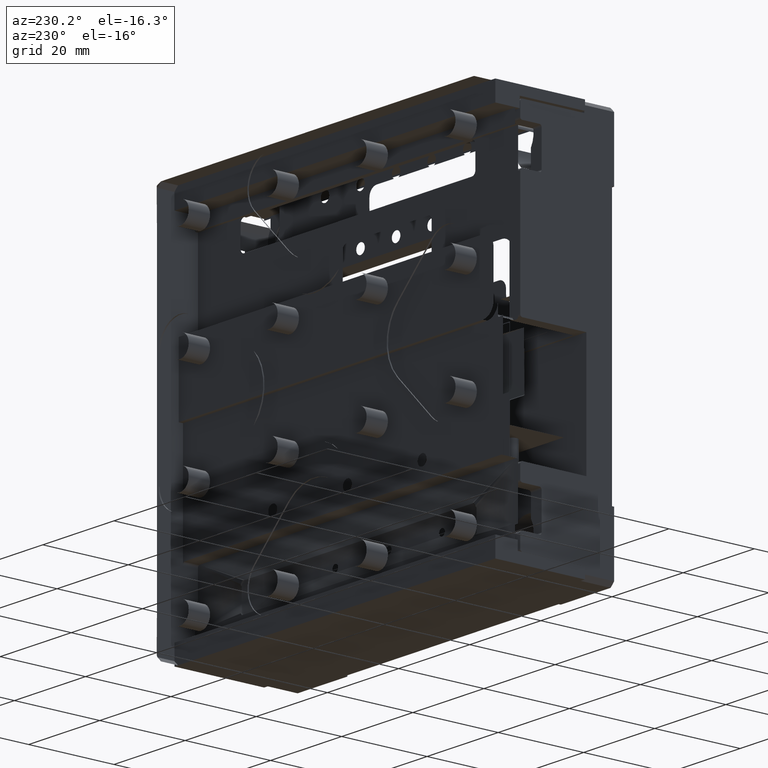
[diagram: clean part render]
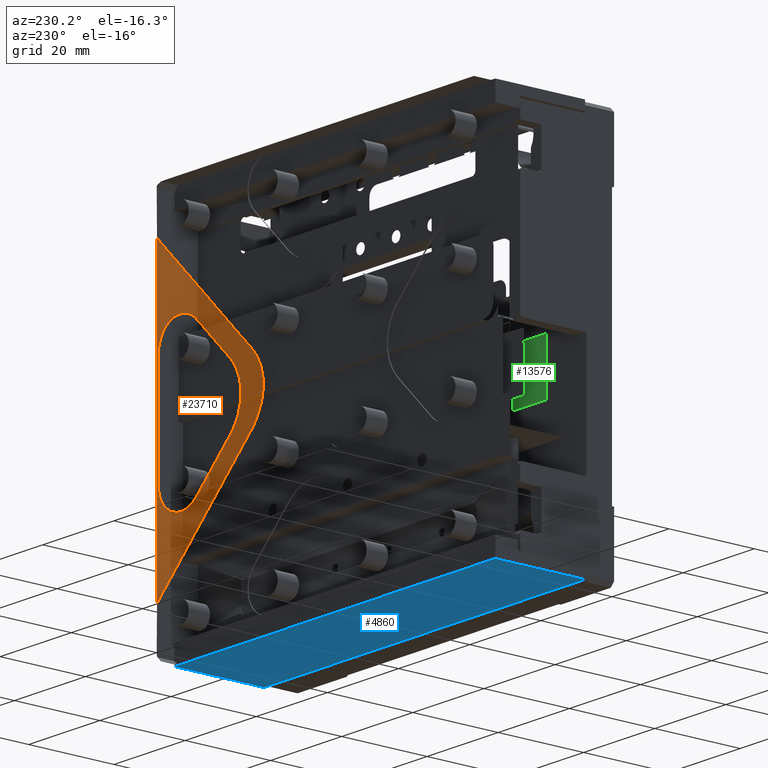
[diagram: same view with three faces highlighted in distinct colors, each labeled with its STEP entity id]
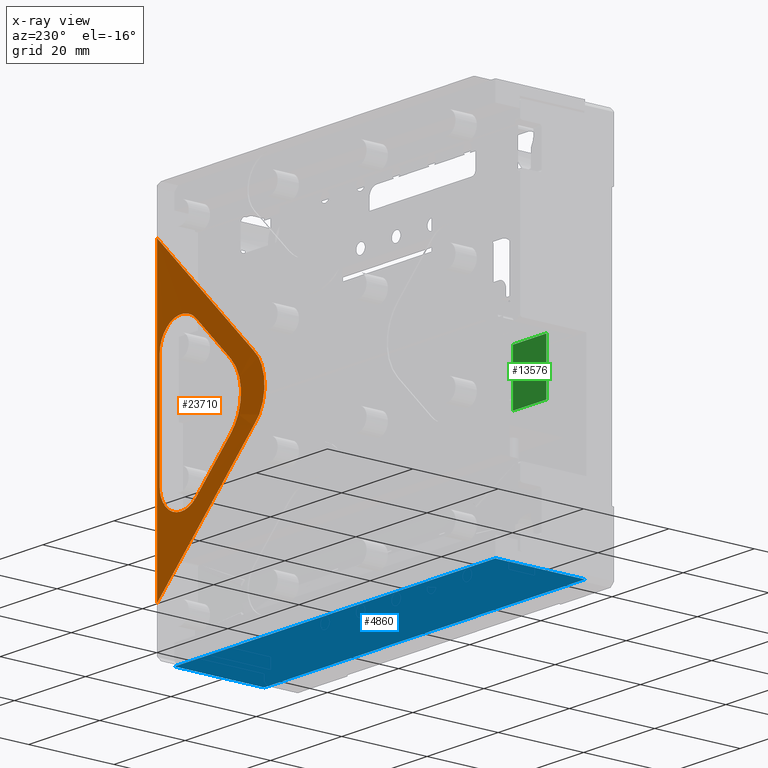
[diagram: x-ray of the same camera — body ghosted, the three highlighted faces saturated]
A machine part, auxiliary view with three faces highlighted in distinct colors.
The next image is the same camera in x-ray (body ghosted, the three faces saturated) — at least one of them is partly hidden behind the body in this view.
Their STEP definitions:

[orange] entity #23710 — the highlighted planar face has unit normal (-0, 1, -0).
#106 = CARTESIAN_POINT ( 'NONE',  ( 61.97056274847719948, 32.19999999999990337, 37.92893218813443923 ) ) ;
#127 = VERTEX_POINT ( 'NONE', #28809 ) ;
#317 = CARTESIAN_POINT ( 'NONE',  ( 88.07065022510973051, 32.19999999999989626, 59.80539245015050653 ) ) ;
#342 = CARTESIAN_POINT ( 'NONE',  ( 81.71460183660258281, 32.19999999999990337, 26.49999999999996803 ) ) ;
#400 = CARTESIAN_POINT ( 'NONE',  ( 61.04496213636083013, 32.19999999999990337, 51.14546719974912747 ) ) ;
#430 = LINE ( 'NONE', #18168, #4114 ) ;
#475 = CARTESIAN_POINT ( 'NONE',  ( 80.19111408500432958, 32.19999999999990337, 63.06920318459111030 ) ) ;
#494 = CARTESIAN_POINT ( 'NONE',  ( 80.92951269384437296, 32.19999999999989626, 26.65616393999006561 ) ) ;
#585 = CARTESIAN_POINT ( 'NONE',  ( 68.58578643762699301, 32.19999999999990337, 37.92893218813444633 ) ) ;
#659 = VECTOR ( 'NONE', #14472, 1000.000000000000000 ) ;
#789 = CARTESIAN_POINT ( 'NONE',  ( 89.11688164886778907, 32.32207890075471823, 10.78261328774380168 ) ) ;
#1031 = LINE ( 'NONE', #19209, #3918 ) ;
#1060 = CARTESIAN_POINT ( 'NONE',  ( 88.50000000000005684, 32.19999999999990337, 32.49999999999997158 ) ) ;
#1465 = ORIENTED_EDGE ( 'NONE', *, *, #28975, .F. ) ;
#1600 = DIRECTION ( 'NONE',  ( 0.7071067811865474617, 0.000000000000000000, -0.7071067811865476838 ) ) ;
#1954 = VERTEX_POINT ( 'NONE', #9960 ) ;
#2039 = VERTEX_POINT ( 'NONE', #24141 ) ;
#2149 = ORIENTED_EDGE ( 'NONE', *, *, #24685, .F. ) ;
#2195 = EDGE_CURVE ( 'NONE', #14547, #2435, #10040, .T. ) ;
#2435 = VERTEX_POINT ( 'NONE', #10930 ) ;
#2552 = CARTESIAN_POINT ( 'NONE',  ( 82.50000000000004263, 32.19999999999990337, 26.49999999999996092 ) ) ;
#2568 = CARTESIAN_POINT ( 'NONE',  ( 89.00000000000001421, 32.49999999999990052, 10.89949493661159607 ) ) ;
#2670 = CARTESIAN_POINT ( 'NONE',  ( 85.85101896221333106, 32.19999999999990337, 62.51175121036676785 ) ) ;
#2751 = CARTESIAN_POINT ( 'NONE',  ( 61.04496213636085855, 32.19999999999991047, 38.85453280025076594 ) ) ;
#3011 = LINE ( 'NONE', #3441, #659 ) ;
#3105 = CARTESIAN_POINT ( 'NONE',  ( 86.18728031984953475, 32.19999999999990337, 27.70199894561088527 ) ) ;
#3180 = EDGE_LOOP ( 'NONE', ( #26174, #22062, #1465, #9840, #8821, #19696, #2149 ) ) ;
#3369 = CARTESIAN_POINT ( 'NONE',  ( 65.65685424949245430, 32.19999999999990337, 46.30899693899571901 ) ) ;
#3441 = CARTESIAN_POINT ( 'NONE',  ( 88.50000000000005684, 32.19999999999990337, 44.99999999999997158 ) ) ;
#3665 = ORIENTED_EDGE ( 'NONE', *, *, #28983, .F. ) ;
#3918 = VECTOR ( 'NONE', #1600, 1000.000000000000000 ) ;
#4114 = VECTOR ( 'NONE', #27110, 1000.000000000000000 ) ;
#4789 = CARTESIAN_POINT ( 'NONE',  ( 59.30190379365946285, 32.19999999999989626, 42.38252115640711537 ) ) ;
#4864 = CARTESIAN_POINT ( 'NONE',  ( 83.67431503440454321, 32.19999999999990337, 63.41337149853591626 ) ) ;
#4887 = CARTESIAN_POINT ( 'NONE',  ( 89.00000000000002842, 32.49999999999990052, 79.10050506338828313 ) ) ;
#5151 = CARTESIAN_POINT ( 'NONE',  ( 67.66018582551065208, 32.19999999999990337, 38.85453280025077305 ) ) ;
#5434 = CARTESIAN_POINT ( 'NONE',  ( 65.91712748280927769, 32.19999999999989626, 47.61747884359276384 ) ) ;
#6040 = CARTESIAN_POINT ( 'NONE',  ( 83.28539816339750246, 32.19999999999991047, 26.49999999999996803 ) ) ;
#6050 = AXIS2_PLACEMENT_3D ( 'NONE', #20882, #16941, #14609 ) ;
#6771 = ORIENTED_EDGE ( 'NONE', *, *, #2195, .F. ) ;
#6858 = CARTESIAN_POINT ( 'NONE',  ( 60.30376667680005909, 32.19999999999990337, 50.03618980370896452 ) ) ;
#7066 = DIRECTION ( 'NONE',  ( -0.7071067811865467956, 0.000000000000000000, -0.7071067811865483499 ) ) ;
#7087 = CARTESIAN_POINT ( 'NONE',  ( 84.25189062816446040, 32.19999999999990337, 63.26869634377434437 ) ) ;
#7298 = EDGE_CURVE ( 'NONE', #7652, #12086, #21492, .T. ) ;
#7507 = CARTESIAN_POINT ( 'NONE',  ( 65.91712748280929191, 32.19999999999990337, 42.38252115640715800 ) ) ;
#7530 = CARTESIAN_POINT ( 'NONE',  ( 78.25735931288075165, 32.19999999999990337, 61.74264068711924835 ) ) ;
#7652 = VERTEX_POINT ( 'NONE', #25355 ) ;
#7671 = CARTESIAN_POINT ( 'NONE',  ( 88.50000000000005684, 32.19999999999990337, 31.71460183660252596 ) ) ;
#7936 = CARTESIAN_POINT ( 'NONE',  ( 68.58578643762699301, 32.19999999999990337, 52.07106781186548261 ) ) ;
#7962 = CARTESIAN_POINT ( 'NONE',  ( 84.07048730615574073, 32.19999999999991047, 26.65616393999007272 ) ) ;
#8003 = FACE_BOUND ( 'NONE', #3180, .T. ) ;
#8821 = ORIENTED_EDGE ( 'NONE', *, *, #24216, .F. ) ;
#8918 = CARTESIAN_POINT ( 'NONE',  ( 59.04163056034261814, 32.19999999999990337, 46.30899693899568348 ) ) ;
#8956 = VERTEX_POINT ( 'NONE', #789 ) ;
#9142 = CARTESIAN_POINT ( 'NONE',  ( 61.97056274847719948, 32.34999999999990195, 37.92893218813443212 ) ) ;
#9271 = CARTESIAN_POINT ( 'NONE',  ( 87.81607555430423417, 32.19999999999990337, 60.34364536830018722 ) ) ;
#9421 = CARTESIAN_POINT ( 'NONE',  ( 81.90718828634022941, 32.19999999999990337, 63.49962936787542844 ) ) ;
#9452 = CARTESIAN_POINT ( 'NONE',  ( 70.98037516565148053, 32.49999999999990052, 28.91911977096015463 ) ) ;
#9840 = ORIENTED_EDGE ( 'NONE', *, *, #11425, .F. ) ;
#9960 = CARTESIAN_POINT ( 'NONE',  ( 89.11688164886778907, 32.32207890075472534, 79.21738671225604378 ) ) ;
#10040 = B_SPLINE_CURVE_WITH_KNOTS ( 'NONE', 3,
 ( #106, #2751, #24869, #4789, #22671, #8918, #17710, #6858, #400, #20188 ),
 .UNSPECIFIED., .F., .F.,
 ( 4, 2, 2, 2, 4 ),
 ( 0.000000000000000000, 0.2500000000000000000, 0.5000000000000000000, 0.7500000000000000000, 1.000000000000000000 ),
 .UNSPECIFIED. ) ;
#10118 = CARTESIAN_POINT ( 'NONE',  ( 66.91899036594986683, 32.19999999999991047, 50.03618980370900715 ) ) ;
#10142 = CARTESIAN_POINT ( 'NONE',  ( 78.67387958833310790, 32.19999999999990337, 62.15916096257161882 ) ) ;
#10930 = CARTESIAN_POINT ( 'NONE',  ( 61.97056274847719237, 32.34999999999990905, 52.07106781186543287 ) ) ;
#10959 = B_SPLINE_CURVE_WITH_KNOTS ( 'NONE', 3,
 ( #11324, #20253, #18064, #317, #9271, #18221, #27157, #2670, #16020, #7087, #4864, #13831, #9421, #22742, #475, #18356, #10142, #7530 ),
 .UNSPECIFIED., .F., .F.,
 ( 4, 2, 2, 2, 2, 2, 2, 2, 4 ),
 ( 0.000000000000000000, 0.1250000000000000000, 0.2500000000000000000, 0.3750000000000000000, 0.5000000000000000000, 0.6250000000000000000, 0.7500000000000000000, 0.8750000000000000000, 1.000000000000000000 ),
 .UNSPECIFIED. ) ;
#11324 = CARTESIAN_POINT ( 'NONE',  ( 88.50000000000005684, 32.19999999999990337, 57.49999999999996447 ) ) ;
#11425 = EDGE_CURVE ( 'NONE', #12255, #26048, #1031, .T. ) ;
#11557 = ORIENTED_EDGE ( 'NONE', *, *, #25705, .F. ) ;
#11756 = CARTESIAN_POINT ( 'NONE',  ( 66.91899036594988104, 32.19999999999990337, 39.96381019629094311 ) ) ;
#11797 = CARTESIAN_POINT ( 'NONE',  ( 78.25735931288076586, 32.19999999999990337, 28.25735931288068059 ) ) ;
#12069 = CARTESIAN_POINT ( 'NONE',  ( 87.29800105438911828, 32.19999999999990337, 28.81271968015048301 ) ) ;
#12086 = VERTEX_POINT ( 'NONE', #21933 ) ;
#12247 = EDGE_CURVE ( 'NONE', #12086, #12959, #3011, .T. ) ;
#12255 = VERTEX_POINT ( 'NONE', #12554 ) ;
#12554 = CARTESIAN_POINT ( 'NONE',  ( 68.58578643762699301, 32.19999999999990337, 37.92893218813444633 ) ) ;
#12678 = ORIENTED_EDGE ( 'NONE', *, *, #22702, .F. ) ;
#12959 = VERTEX_POINT ( 'NONE', #22988 ) ;
#13536 = B_SPLINE_CURVE_WITH_KNOTS ( 'NONE', 3,
 ( #2568, #27037, #9452, #13866 ),
 .UNSPECIFIED., .F., .F.,
 ( 4, 4 ),
 ( 0.000000000000000000, 1.000000000000000000 ),
 .UNSPECIFIED. ) ;
#13831 = CARTESIAN_POINT ( 'NONE',  ( 82.50189064955026197, 32.19999999999990337, 63.52884522153038915 ) ) ;
#13866 = CARTESIAN_POINT ( 'NONE',  ( 61.97056274847720658, 32.49999999999990052, 37.92893218813443212 ) ) ;
#13944 = B_SPLINE_CURVE_WITH_KNOTS ( 'NONE', 3,
 ( #27459, #16044, #27021, #4887 ),
 .UNSPECIFIED., .F., .F.,
 ( 4, 4 ),
 ( 0.000000000000000000, 1.000000000000000000 ),
 .UNSPECIFIED. ) ;
#14472 = DIRECTION ( 'NONE',  ( -8.314275978609367850E-49, 9.540590846962779452E-32, 1.000000000000000000 ) ) ;
#14547 = VERTEX_POINT ( 'NONE', #9142 ) ;
#14609 = DIRECTION ( 'NONE',  ( -1.000000000000000000, -8.714634252716324339E-18, 0.000000000000000000 ) ) ;
#14744 = EDGE_LOOP ( 'NONE', ( #3665, #6771, #12678, #11557 ) ) ;
#14993 = CARTESIAN_POINT ( 'NONE',  ( 85.52171388222541282, 32.19999999999989626, 27.25728166987441625 ) ) ;
#16020 = CARTESIAN_POINT ( 'NONE',  ( 85.34031056021673578, 32.19999999999990337, 62.81785804636106008 ) ) ;
#16044 = CARTESIAN_POINT ( 'NONE',  ( 70.98037516565146632, 32.49999999999990052, 61.08088022903971392 ) ) ;
#16835 = VECTOR ( 'NONE', #7066, 1000.000000000000000 ) ;
#16941 = DIRECTION ( 'NONE',  ( -8.714634252716324339E-18, 1.000000000000000000, -9.540590846962779452E-32 ) ) ;
#17051 = B_SPLINE_CURVE_WITH_KNOTS ( 'NONE', 3,
 ( #11797, #20420, #27178, #494, #342, #2552 ),
 .UNSPECIFIED., .F., .F.,
 ( 4, 2, 4 ),
 ( 0.000000000000000000, 0.5000000000000000000, 1.000000000000000000 ),
 .UNSPECIFIED. ) ;
#17172 = CARTESIAN_POINT ( 'NONE',  ( 82.50000000000004263, 32.19999999999990337, 26.49999999999996092 ) ) ;
#17710 = CARTESIAN_POINT ( 'NONE',  ( 59.30190379365948417, 32.19999999999990337, 47.61747884359274963 ) ) ;
#17960 = B_SPLINE_CURVE_WITH_KNOTS ( 'NONE', 3,
 ( #7936, #25223, #10118, #5434, #3369, #20674, #7507, #11756, #5151, #585 ),
 .UNSPECIFIED., .F., .F.,
 ( 4, 2, 2, 2, 4 ),
 ( 0.000000000000000000, 0.2500000000000000000, 0.5000000000000000000, 0.7500000000000000000, 1.000000000000000000 ),
 .UNSPECIFIED. ) ;
#18064 = CARTESIAN_POINT ( 'NONE',  ( 88.41263380367688285, 32.19999999999991047, 58.67802367690299548 ) ) ;
#18168 = CARTESIAN_POINT ( 'NONE',  ( 89.30000000000001137, 32.19999999999990337, 89.99999999999997158 ) ) ;
#18196 = CARTESIAN_POINT ( 'NONE',  ( 78.25735931288075165, 32.19999999999990337, 61.74264068711924835 ) ) ;
#18221 = CARTESIAN_POINT ( 'NONE',  ( 87.16155979332636150, 32.19999999999990337, 61.32319742793497852 ) ) ;
#18356 = CARTESIAN_POINT ( 'NONE',  ( 79.15212507308379486, 32.19999999999990337, 62.51385198758907791 ) ) ;
#19209 = CARTESIAN_POINT ( 'NONE',  ( 68.58578643762699301, 32.19999999999990337, 37.92893218813444633 ) ) ;
#19696 = ORIENTED_EDGE ( 'NONE', *, *, #24152, .F. ) ;
#20188 = CARTESIAN_POINT ( 'NONE',  ( 61.97056274847717106, 32.19999999999990337, 52.07106781186544708 ) ) ;
#20253 = CARTESIAN_POINT ( 'NONE',  ( 88.50000000000005684, 32.19999999999991047, 58.08904862254806289 ) ) ;
#20420 = CARTESIAN_POINT ( 'NONE',  ( 78.81271968015053631, 32.19999999999991047, 27.70199894561088172 ) ) ;
#20674 = CARTESIAN_POINT ( 'NONE',  ( 65.65685424949242588, 32.19999999999990337, 43.69100306100420283 ) ) ;
#20882 = CARTESIAN_POINT ( 'NONE',  ( 45.00000000000002132, 32.19999999999990337, 44.99999999999997158 ) ) ;
#21132 = CARTESIAN_POINT ( 'NONE',  ( 88.34383606000994860, 32.19999999999990337, 30.92951269384429835 ) ) ;
#21492 = B_SPLINE_CURVE_WITH_KNOTS ( 'NONE', 3,
 ( #17172, #6040, #7962, #14993, #3105, #12069, #27720, #21132, #7671, #1060 ),
 .UNSPECIFIED., .F., .F.,
 ( 4, 2, 2, 2, 4 ),
 ( 0.000000000000000000, 0.2500000000000000000, 0.5000000000000000000, 0.7500000000000000000, 1.000000000000000000 ),
 .UNSPECIFIED. ) ;
#21933 = CARTESIAN_POINT ( 'NONE',  ( 88.50000000000005684, 32.19999999999990337, 32.49999999999997158 ) ) ;
#22062 = ORIENTED_EDGE ( 'NONE', *, *, #7298, .F. ) ;
#22139 = LINE ( 'NONE', #18196, #16835 ) ;
#22671 = CARTESIAN_POINT ( 'NONE',  ( 59.04163056034263946, 32.19999999999990337, 43.69100306100418152 ) ) ;
#22702 = EDGE_CURVE ( 'NONE', #8956, #14547, #13536, .T. ) ;
#22742 = CARTESIAN_POINT ( 'NONE',  ( 80.75172784946630600, 32.19999999999990337, 63.26979399696327988 ) ) ;
#22988 = CARTESIAN_POINT ( 'NONE',  ( 88.50000000000005684, 32.19999999999990337, 57.49999999999996447 ) ) ;
#23710 = ADVANCED_FACE ( 'NONE', ( #8003, #27908 ), #25731, .F. ) ;
#24141 = CARTESIAN_POINT ( 'NONE',  ( 68.58578643762699301, 32.19999999999990337, 52.07106781186548261 ) ) ;
#24152 = EDGE_CURVE ( 'NONE', #127, #2039, #22139, .T. ) ;
#24216 = EDGE_CURVE ( 'NONE', #2039, #12255, #17960, .T. ) ;
#24685 = EDGE_CURVE ( 'NONE', #12959, #127, #10959, .T. ) ;
#24869 = CARTESIAN_POINT ( 'NONE',  ( 60.30376667680008040, 32.19999999999991047, 39.96381019629093601 ) ) ;
#25223 = CARTESIAN_POINT ( 'NONE',  ( 67.66018582551066629, 32.19999999999991047, 51.14546719974914879 ) ) ;
#25355 = CARTESIAN_POINT ( 'NONE',  ( 82.50000000000004263, 32.19999999999990337, 26.49999999999996092 ) ) ;
#25705 = EDGE_CURVE ( 'NONE', #1954, #8956, #430, .T. ) ;
#25731 = PLANE ( 'NONE',  #6050 ) ;
#26048 = VERTEX_POINT ( 'NONE', #26312 ) ;
#26174 = ORIENTED_EDGE ( 'NONE', *, *, #12247, .F. ) ;
#26312 = CARTESIAN_POINT ( 'NONE',  ( 78.25735931288076586, 32.19999999999990337, 28.25735931288068059 ) ) ;
#27021 = CARTESIAN_POINT ( 'NONE',  ( 79.99018758282575448, 32.49999999999990052, 70.09069264621399498 ) ) ;
#27037 = CARTESIAN_POINT ( 'NONE',  ( 79.99018758282574026, 32.49999999999990052, 19.90930735378587357 ) ) ;
#27110 = DIRECTION ( 'NONE',  ( -1.065981987175782364E-16, -1.065981987175782364E-16, -1.000000000000000000 ) ) ;
#27157 = CARTESIAN_POINT ( 'NONE',  ( 86.76170044775051338, 32.19999999999990337, 61.76437422998603921 ) ) ;
#27178 = CARTESIAN_POINT ( 'NONE',  ( 79.47828611777465824, 32.19999999999991047, 27.25728166987441270 ) ) ;
#27459 = CARTESIAN_POINT ( 'NONE',  ( 61.97056274847718527, 32.49999999999990052, 52.07106781186543287 ) ) ;
#27720 = CARTESIAN_POINT ( 'NONE',  ( 87.74271833012561217, 32.19999999999990337, 29.47828611777457652 ) ) ;
#27908 = FACE_OUTER_BOUND ( 'NONE', #14744, .T. ) ;
#28809 = CARTESIAN_POINT ( 'NONE',  ( 78.25735931288075165, 32.19999999999990337, 61.74264068711924835 ) ) ;
#28975 = EDGE_CURVE ( 'NONE', #26048, #7652, #17051, .T. ) ;
#28983 = EDGE_CURVE ( 'NONE', #2435, #1954, #13944, .T. ) ;

[blue] entity #4860 — the highlighted planar face has unit normal (-0, -0, -1).
#2488 = FACE_OUTER_BOUND ( 'NONE', #14277, .T. ) ;
#2584 = ORIENTED_EDGE ( 'NONE', *, *, #20051, .T. ) ;
#2596 = CARTESIAN_POINT ( 'NONE',  ( 90.00000000000002842, 6.499999999999987566, -1.017499447614743455E-14 ) ) ;
#2865 = ORIENTED_EDGE ( 'NONE', *, *, #28249, .F. ) ;
#3673 = VECTOR ( 'NONE', #21019, 1000.000000000000000 ) ;
#4860 = ADVANCED_FACE ( 'NONE', ( #2488 ), #9083, .T. ) ;
#5488 = CARTESIAN_POINT ( 'NONE',  ( -0.1999999999999918510, 27.49999999999990052, -2.391155711201246750E-14 ) ) ;
#6155 = CARTESIAN_POINT ( 'NONE',  ( -0.1999999999999918510, 6.499999999999992006, -4.853306763772600038E-15 ) ) ;
#6465 = VECTOR ( 'NONE', #8204, 1000.000000000000000 ) ;
#8121 = EDGE_CURVE ( 'NONE', #18069, #18919, #10027, .T. ) ;
#8204 = DIRECTION ( 'NONE',  ( 0.000000000000000000, 1.000000000000000000, -9.075357308685691178E-16 ) ) ;
#8866 = CARTESIAN_POINT ( 'NONE',  ( 90.00000000000002842, 27.49999999999989697, -2.923324482438730201E-14 ) ) ;
#9083 = PLANE ( 'NONE',  #23507 ) ;
#10027 = LINE ( 'NONE', #5488, #3673 ) ;
#10995 = DIRECTION ( 'NONE',  ( 0.000000000000000000, 1.000000000000000000, -9.075357308685691178E-16 ) ) ;
#11367 = LINE ( 'NONE', #27483, #12614 ) ;
#12614 = VECTOR ( 'NONE', #13440, 1000.000000000000000 ) ;
#13440 = DIRECTION ( 'NONE',  ( 0.000000000000000000, 1.000000000000000000, -9.075357308685691178E-16 ) ) ;
#14192 = CARTESIAN_POINT ( 'NONE',  ( -0.1999999999999918510, 6.499999999999992006, -4.853306763772600038E-15 ) ) ;
#14277 = EDGE_LOOP ( 'NONE', ( #26987, #2865, #2584, #18289 ) ) ;
#14913 = VECTOR ( 'NONE', #25159, 1000.000000000000000 ) ;
#18023 = CARTESIAN_POINT ( 'NONE',  ( -0.1999999999999918510, 6.499999999999992006, -4.853306763772600038E-15 ) ) ;
#18069 = VERTEX_POINT ( 'NONE', #21714 ) ;
#18289 = ORIENTED_EDGE ( 'NONE', *, *, #8121, .T. ) ;
#18919 = VERTEX_POINT ( 'NONE', #8866 ) ;
#20051 = EDGE_CURVE ( 'NONE', #26462, #18069, #27839, .T. ) ;
#20357 = DIRECTION ( 'NONE',  ( -5.899875512610686015E-17, -9.075357308685691178E-16, -1.000000000000000000 ) ) ;
#20620 = LINE ( 'NONE', #14192, #14913 ) ;
#21019 = DIRECTION ( 'NONE',  ( 1.000000000000000000, -5.034521060366351311E-17, -5.899875512610681084E-17 ) ) ;
#21714 = CARTESIAN_POINT ( 'NONE',  ( -0.1999999999999918510, 27.49999999999990052, -2.391155711201246750E-14 ) ) ;
#21875 = CARTESIAN_POINT ( 'NONE',  ( -0.1999999999999918510, 6.499999999999992006, -4.853306763772600038E-15 ) ) ;
#23507 = AXIS2_PLACEMENT_3D ( 'NONE', #18023, #20357, #10995 ) ;
#23523 = EDGE_CURVE ( 'NONE', #25932, #18919, #11367, .T. ) ;
#25159 = DIRECTION ( 'NONE',  ( 1.000000000000000000, -5.034521060366351311E-17, -5.899875512610681084E-17 ) ) ;
#25932 = VERTEX_POINT ( 'NONE', #2596 ) ;
#26462 = VERTEX_POINT ( 'NONE', #21875 ) ;
#26987 = ORIENTED_EDGE ( 'NONE', *, *, #23523, .F. ) ;
#27483 = CARTESIAN_POINT ( 'NONE',  ( 90.00000000000002842, 6.499999999999987566, -1.017499447614743455E-14 ) ) ;
#27839 = LINE ( 'NONE', #6155, #6465 ) ;
#28249 = EDGE_CURVE ( 'NONE', #26462, #25932, #20620, .T. ) ;

[green] entity #13576 — the highlighted planar face has unit normal (0, -1, -0).
#478 = ORIENTED_EDGE ( 'NONE', *, *, #6433, .T. ) ;
#1130 = VERTEX_POINT ( 'NONE', #10438 ) ;
#2897 = CARTESIAN_POINT ( 'NONE',  ( 2.350000000000026734, 13.41999999999990401, 45.39999999999999858 ) ) ;
#3164 = VECTOR ( 'NONE', #5944, 1000.000000000000000 ) ;
#4722 = EDGE_CURVE ( 'NONE', #18335, #6861, #12929, .T. ) ;
#5944 = DIRECTION ( 'NONE',  ( -0.000000000000000000, -2.220446049250312095E-16, 1.000000000000000000 ) ) ;
#6433 = EDGE_CURVE ( 'NONE', #26473, #18335, #17089, .T. ) ;
#6861 = VERTEX_POINT ( 'NONE', #2897 ) ;
#7350 = CARTESIAN_POINT ( 'NONE',  ( 11.75000000000002487, 13.41999999999990401, 45.40000000000000568 ) ) ;
#7815 = AXIS2_PLACEMENT_3D ( 'NONE', #22468, #9133, #13837 ) ;
#8177 = ORIENTED_EDGE ( 'NONE', *, *, #25754, .T. ) ;
#9094 = CARTESIAN_POINT ( 'NONE',  ( 2.350000000000024958, 13.41999999999990756, 32.69999999999999574 ) ) ;
#9133 = DIRECTION ( 'NONE',  ( 8.714634252716242679E-18, -1.000000000000000000, -2.220446049250312095E-16 ) ) ;
#9513 = CARTESIAN_POINT ( 'NONE',  ( 2.050000000000024691, 13.41999999999990933, 32.99999999999999289 ) ) ;
#10438 = CARTESIAN_POINT ( 'NONE',  ( 2.350000000000024958, 13.41999999999990756, 32.99999999999999289 ) ) ;
#10566 = EDGE_CURVE ( 'NONE', #6861, #1130, #11883, .T. ) ;
#10623 = CARTESIAN_POINT ( 'NONE',  ( 11.75000000000002487, 13.41999999999990756, 32.69999999999999574 ) ) ;
#11340 = VECTOR ( 'NONE', #15259, 1000.000000000000000 ) ;
#11883 = LINE ( 'NONE', #9094, #20991 ) ;
#12504 = ORIENTED_EDGE ( 'NONE', *, *, #10566, .T. ) ;
#12929 = LINE ( 'NONE', #24029, #11340 ) ;
#13576 = ADVANCED_FACE ( 'NONE', ( #20129 ), #22908, .T. ) ;
#13837 = DIRECTION ( 'NONE',  ( 0.000000000000000000, 2.220446049250312095E-16, -1.000000000000000000 ) ) ;
#13884 = EDGE_LOOP ( 'NONE', ( #12504, #8177, #478, #17008 ) ) ;
#13903 = VECTOR ( 'NONE', #27392, 1000.000000000000000 ) ;
#15259 = DIRECTION ( 'NONE',  ( -1.000000000000000000, -8.714634252716242679E-18, -1.935037519710522526E-33 ) ) ;
#15877 = CARTESIAN_POINT ( 'NONE',  ( 11.75000000000002487, 13.41999999999990756, 32.99999999999999289 ) ) ;
#17008 = ORIENTED_EDGE ( 'NONE', *, *, #4722, .T. ) ;
#17089 = LINE ( 'NONE', #10623, #3164 ) ;
#18335 = VERTEX_POINT ( 'NONE', #7350 ) ;
#20129 = FACE_OUTER_BOUND ( 'NONE', #13884, .T. ) ;
#20518 = DIRECTION ( 'NONE',  ( -1.296448765684071206E-16, 2.220446049250312095E-16, -1.000000000000000000 ) ) ;
#20653 = LINE ( 'NONE', #9513, #13903 ) ;
#20991 = VECTOR ( 'NONE', #20518, 1000.000000000000000 ) ;
#22468 = CARTESIAN_POINT ( 'NONE',  ( 2.050000000000024247, 13.41999999999990756, 32.69999999999999574 ) ) ;
#22908 = PLANE ( 'NONE',  #7815 ) ;
#24029 = CARTESIAN_POINT ( 'NONE',  ( 2.050000000000024247, 13.41999999999990401, 45.40000000000000568 ) ) ;
#25754 = EDGE_CURVE ( 'NONE', #1130, #26473, #20653, .T. ) ;
#26473 = VERTEX_POINT ( 'NONE', #15877 ) ;
#27392 = DIRECTION ( 'NONE',  ( 1.000000000000000000, 8.714634252716282739E-18, -1.821869818503969413E-16 ) ) ;